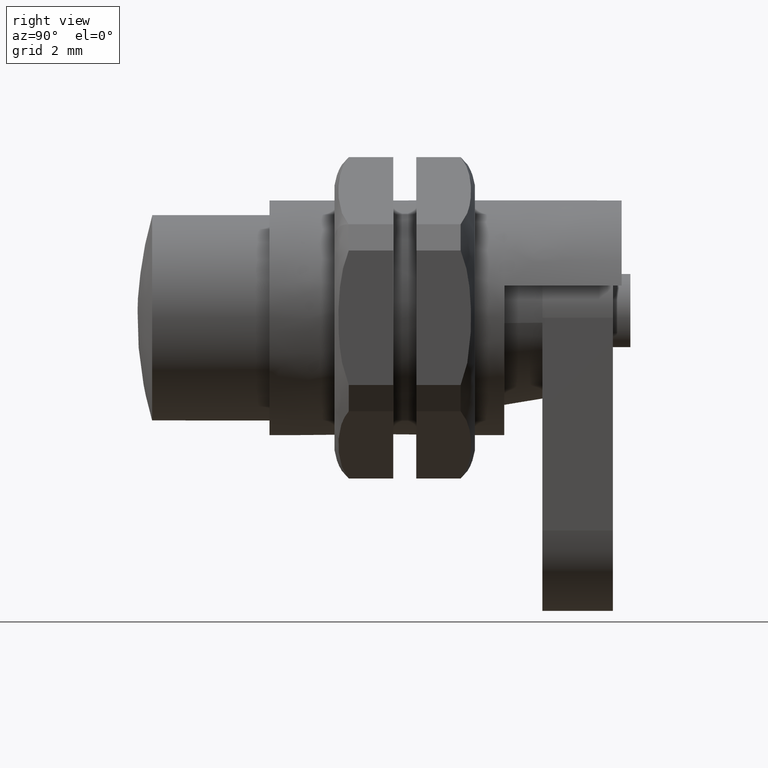
[diagram: clean part render]
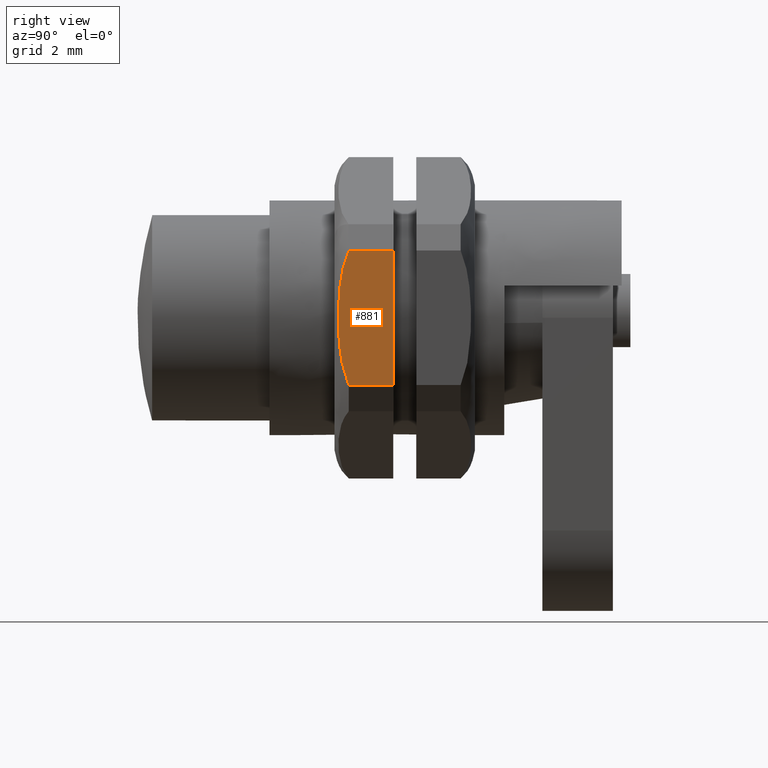
[diagram: same view with one face highlighted and labeled with its STEP entity id]
A machine part, right view. The second image highlights one B-rep face of the part: STEP entity #881.
In plain terms, the highlighted face is a freeform B-spline surface patch.
Its self-contained STEP definition (entity closure, byte-faithful):
#605=CARTESIAN_POINT('',(167.202001469614000,-5.0,-2.291287847478035));
#606=VERTEX_POINT('',#605);
#620=CARTESIAN_POINT('',(167.202001469614000,-4.999999999999941,2.291287847478065));
#621=VERTEX_POINT('',#620);
#622=CARTESIAN_POINT('',(167.202001469613690,-4.999999999999941,-2.291287847478117));
#623=CARTESIAN_POINT('',(167.162927638594600,-4.999999999999941,-2.201651654516032));
#624=CARTESIAN_POINT('',(167.129015108680990,-4.999999999999941,-2.110541821385184));
#625=CARTESIAN_POINT('',(167.069086483266600,-4.999999999999941,-1.926067587389107));
#626=CARTESIAN_POINT('',(167.043087208482800,-4.999999999999940,-1.832698383920010));
#627=CARTESIAN_POINT('',(166.997373837207390,-4.999999999999941,-1.644165450561226));
#628=CARTESIAN_POINT('',(166.977666883298210,-4.999999999999940,-1.548999681341452));
#629=CARTESIAN_POINT('',(166.943346829037100,-4.999999999999940,-1.357213760167359));
#630=CARTESIAN_POINT('',(166.928735348140890,-4.999999999999940,-1.260525316603544));
#631=CARTESIAN_POINT('',(166.891375172489090,-4.999999999999940,-0.970518020426845));
#632=CARTESIAN_POINT('',(166.874847055789300,-4.999999999999941,-0.776603166888549));
#633=CARTESIAN_POINT('',(166.858713670098500,-4.999999999999940,-0.485134951266964));
#634=CARTESIAN_POINT('',(166.854810392860400,-4.999999999999941,-0.387877396690792));
#635=CARTESIAN_POINT('',(166.850937810366990,-4.999999999999941,-0.241854632075160));
#636=CARTESIAN_POINT('',(166.849979028462710,-4.999999999999941,-0.193157522096014));
#637=CARTESIAN_POINT('',(166.848707482339510,-4.999999999999941,-0.095718840407998));
#638=CARTESIAN_POINT('',(166.848394755130410,-4.999999999999941,-0.046858028592812));
#639=CARTESIAN_POINT('',(166.848433774387590,-4.999999999999939,0.196341403472844));
#640=CARTESIAN_POINT('',(166.853437215055810,-4.999999999999940,0.390453500860251));
#641=CARTESIAN_POINT('',(166.874940580357790,-4.999999999999941,0.777643132329118));
#642=CARTESIAN_POINT('',(166.891425155264610,-4.999999999999941,0.970722047725448));
#643=CARTESIAN_POINT('',(166.928555955607210,-4.999999999999942,1.259224196144301));
#644=CARTESIAN_POINT('',(166.943027799696610,-4.999999999999942,1.355203058905160));
#645=CARTESIAN_POINT('',(166.977213522512900,-4.999999999999942,1.546689056140168));
#646=CARTESIAN_POINT('',(166.996981972168700,-4.999999999999941,1.642417590548787));
#647=CARTESIAN_POINT('',(167.065767983747490,-4.999999999999939,1.926500046739985));
#648=CARTESIAN_POINT('',(167.123865472711290,-4.999999999999940,2.112042221622246));
#649=CARTESIAN_POINT('',(167.202001469613800,-4.999999999999941,2.291287847478130));
#650=B_SPLINE_CURVE_WITH_KNOTS('',3,(#622,#623,#624,#625,#626,#627,#628,#629,#630,#631,#632,#633,#634,#635,#636,#637,#638,#639,#640,#641,#642,#643,#644,#645,#646,#647,#648,#649),.UNSPECIFIED.,.F.,.U.,(4,2,2,2,2,2,2,2,2,2,2,2,2,4),(0.0,0.062499999999999,0.124999999999998,0.187499999999997,0.249999999999996,0.374999999999997,0.437499999999997,0.468749999999998,0.499999999999998,0.624999999999999,0.750000000000001,0.812500000000002,0.875000000000003,1.0),.UNSPECIFIED.);
#651=EDGE_CURVE('',#606,#621,#650,.T.);
#836=CARTESIAN_POINT('',(168.716727999999990,-4.999999999999941,-2.291287847478035));
#837=VERTEX_POINT('',#836);
#851=CARTESIAN_POINT('',(167.202001469614000,-5.0,-2.291287847478035));
#852=CARTESIAN_POINT('',(168.716727999999990,-4.999999999999941,-2.291287847478035));
#853=QUASI_UNIFORM_CURVE('',1,(#851,#852),.UNSPECIFIED.,.F.,.U.);
#854=EDGE_CURVE('',#606,#837,#853,.T.);
#860=CARTESIAN_POINT('',(166.755081509478090,-4.999999999999941,-2.520187580595055));
#861=CARTESIAN_POINT('',(166.755081509478090,-4.999999999999941,2.520187621566504));
#862=CARTESIAN_POINT('',(168.810042977044500,-4.999999999999941,-2.520187580595055));
#863=CARTESIAN_POINT('',(168.810042977044500,-4.999999999999941,2.520187621566504));
#864=B_SPLINE_SURFACE_WITH_KNOTS('',1,1,((#860,#862),(#861,#863)),.UNSPECIFIED.,.F.,.F.,.U.,(2,2),(2,2),(0.0,5.040375202161559),(0.0,2.054961467566415),.UNSPECIFIED.);
#865=ORIENTED_EDGE('',*,*,#854,.T.);
#866=CARTESIAN_POINT('',(168.716727999999990,-4.999999999999941,2.291287847478050));
#867=VERTEX_POINT('',#866);
#868=CARTESIAN_POINT('',(168.716727999999990,-4.999999999999941,2.291287847478050));
#869=CARTESIAN_POINT('',(168.716727999999990,-4.999999999999941,-2.291287847478035));
#870=QUASI_UNIFORM_CURVE('',1,(#868,#869),.UNSPECIFIED.,.F.,.U.);
#871=EDGE_CURVE('',#867,#837,#870,.T.);
#872=ORIENTED_EDGE('',*,*,#871,.F.);
#873=CARTESIAN_POINT('',(167.202001469614000,-4.999999999999941,2.291287847478065));
#874=CARTESIAN_POINT('',(168.716727999999990,-4.999999999999941,2.291287847478050));
#875=QUASI_UNIFORM_CURVE('',1,(#873,#874),.UNSPECIFIED.,.F.,.U.);
#876=EDGE_CURVE('',#621,#867,#875,.T.);
#877=ORIENTED_EDGE('',*,*,#876,.F.);
#878=ORIENTED_EDGE('',*,*,#651,.F.);
#879=EDGE_LOOP('',(#865,#872,#877,#878));
#880=FACE_OUTER_BOUND('',#879,.T.);
#881=ADVANCED_FACE('',(#880),#864,.F.);